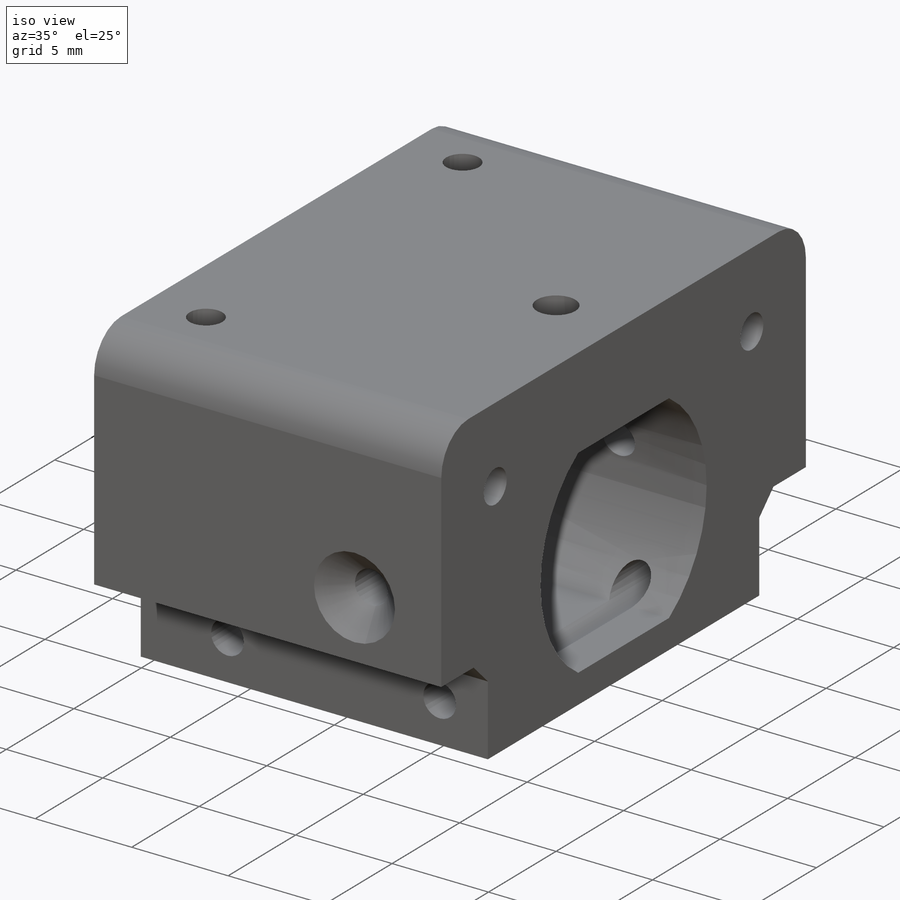
[diagram: iso view]
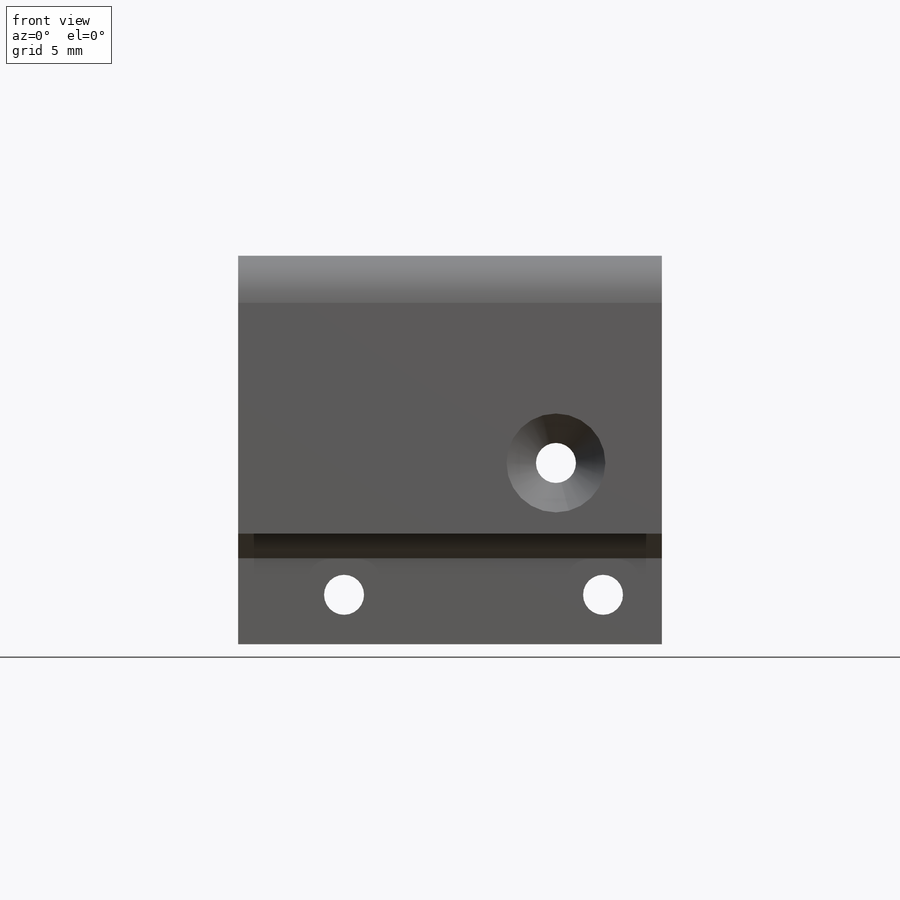
[diagram: front view]
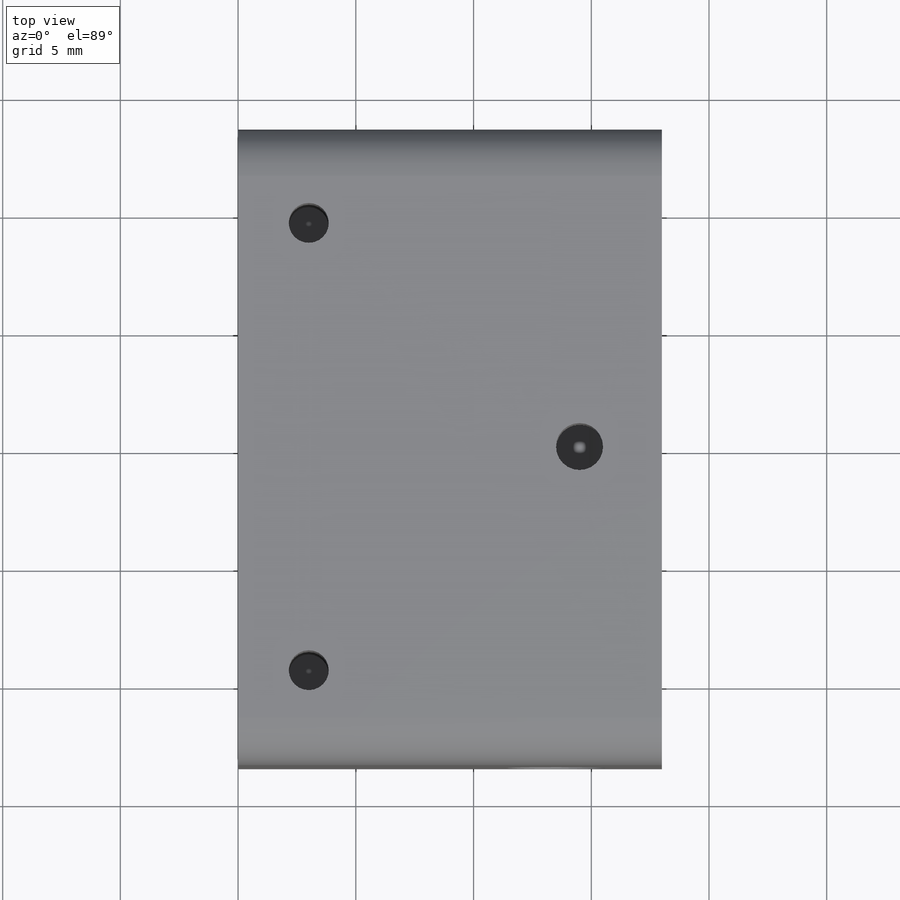
[diagram: top view]
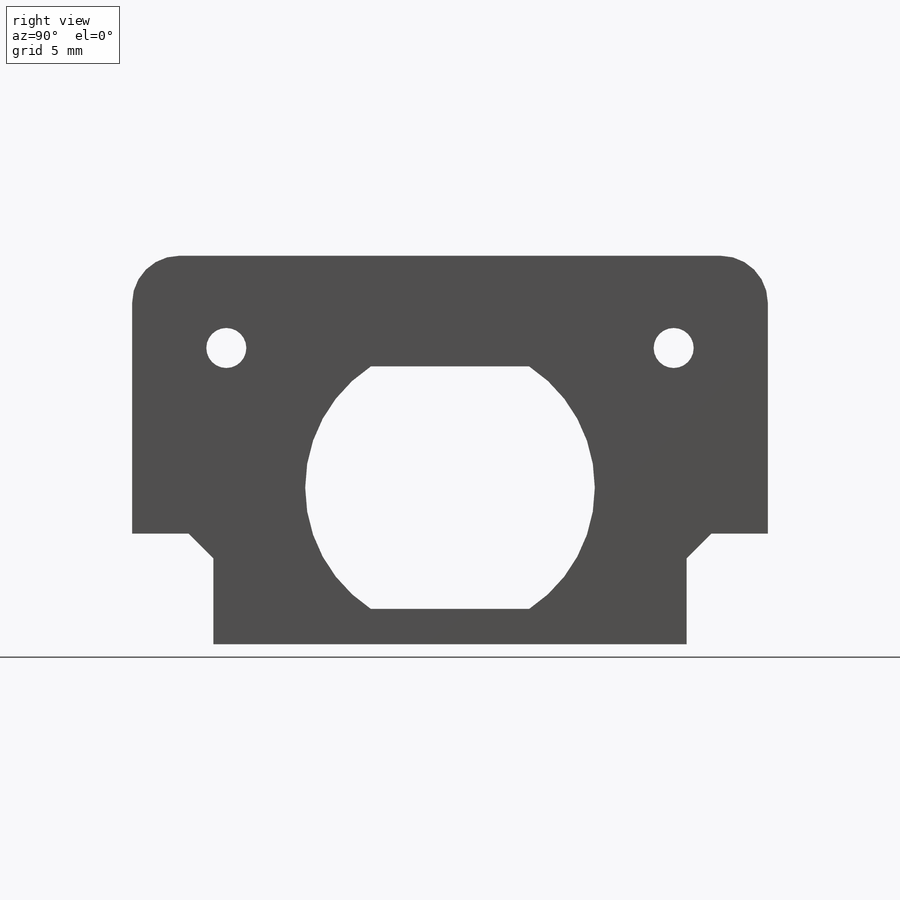
[diagram: right view]
SOLIDWORKS PART (.sldprt)
format: sldprt  version: not decoded by parser v0  size: 538,112 bytes
history: native  units: mm
features: sketch x14, cut_extrude x7, plane x3, fillet x3, hole x2, material x1, extrude x1 (+10 scaffold rows collapsed)
feature tree (41):
  scaffold x10  (default folders/planes/origin — collapsed)
  material  "材质 <未指定>"
  plane  "前视基准面"
  plane  "上视基准面"
  plane  "右视基准面"
  sketch  "草图1"  dims[c1.D2=12.3mm c1.D5=1.7mm c1.D11=15.0mm c1.D1=27.0mm c1.D3=10.3mm c1.D4=0.5mm c1.D6=9.5mm c1.D7=16.5mm c2.D4=1.5mm c2.D8=7.35mm c2.D9=11.2mm c2.D10=~3.067884mm c2.D12=4.7mm]
  extrude  "凸台-拉伸1"  Depth=18mm
  sketch  "草图2"  dims[D1=12.2mm D2=10.15mm D3=1.575mm]
  cut_extrude  "切除-拉伸1"  Depth=10.5mm
  fillet  "圆角1"  Radius=0.5mm
  sketch  "草图3"  dims[D1=2.5mm D2=8.0mm D3=6.5mm]
  cut_extrude  "切除-拉伸2"  Depth=10mm
  fillet  "圆角3"  Radius=1mm
  sketch  "草图4"  dims[c1.D1=3.5mm c1.D2=4.5mm c1.D3=3.5mm c2.D3=135.0deg c2.D4=2.5mm c2.D5=20.5mm c2.D6=7.35mm c2.D7=4.7mm]
  sketch  "草图5"  dims[D1=0.2mm D2=0.2mm D3=2.4mm D4=20.1mm]
  cut_extrude  "切除-拉伸3"  [1 undecoded]
  sketch  "草图8"  dims[D1=1.7mm D2=4.5mm D3=6.2mm]
  cut_extrude  "切除-拉伸4"  [1 undecoded]
  hole  "M2 平头机械螺钉的锥形沉头孔1"  [1 undecoded]
  sketch  "3D草图1"
  sketch  "草图11"  dims[hole-wizard template sketch: 54 standard entries collapsed; hole parameters kept: c17.通孔孔直径=1.7mm c17.通孔孔深度=27.0mm c17.近端锥形沉头孔直径=4.2mm c17.D4=~3.666174mm c17.近端锥形沉头孔角度=90.0deg]
  sketch  "草图13"  dims[c1.D4=1.7mm c1.D1=11.0mm c1.D2=4.5mm c2.D1=4.5mm c2.D3=2.1mm c2.D2=11.0mm c3.D1=4.5mm]
  cut_extrude  "切除-拉伸5"  Depth=100mm
  sketch  "草图14"  dims[D1=1.7mm D5=4.2mm D2=3.0mm D3=19.0mm D4=4.5mm]
  cut_extrude  "切除-拉伸6"  Depth=10mm
  fillet  "圆角4"  Radius=2mm
  sketch  "草图16"  dims[D1=13.6mm D2=4.7mm D3=5.0mm D4=14.0mm]
  sketch  "Sketch4"  dims[D2=2.0mm D3=4.0mm D4=3.5mm D1=0.0mm]
  cut_extrude  "Extrude1"  Depth=10mm
  hole  "CSK for M2 Flat Head Machine Screw1"  [1 undecoded]
  sketch  "3DSketch1"
  sketch  "Sketch5"  dims[hole-wizard template sketch: 54 standard entries collapsed; hole parameters kept: c17.通孔孔直径=2.0mm c17.通孔孔深度=16.5mm c17.近端锥形沉头孔直径=4.2mm c17.D4=~3.666174mm c17.近端锥形沉头孔角度=90.0deg]
decode coverage: 21 of 27 modeling features carry decoded parameters
note: ~ marks probable driven/reference dimensions
note: 4 parameter values undecoded
summary: no parameter record found for 4 features
note: suppression state not decoded; provenance and decode notes live in map.json
